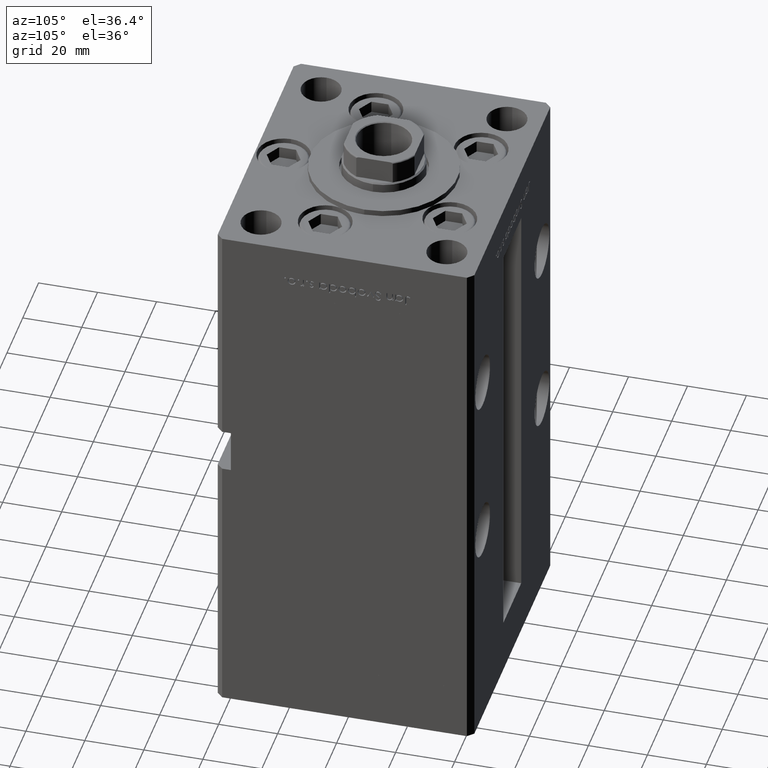
[diagram: clean part render]
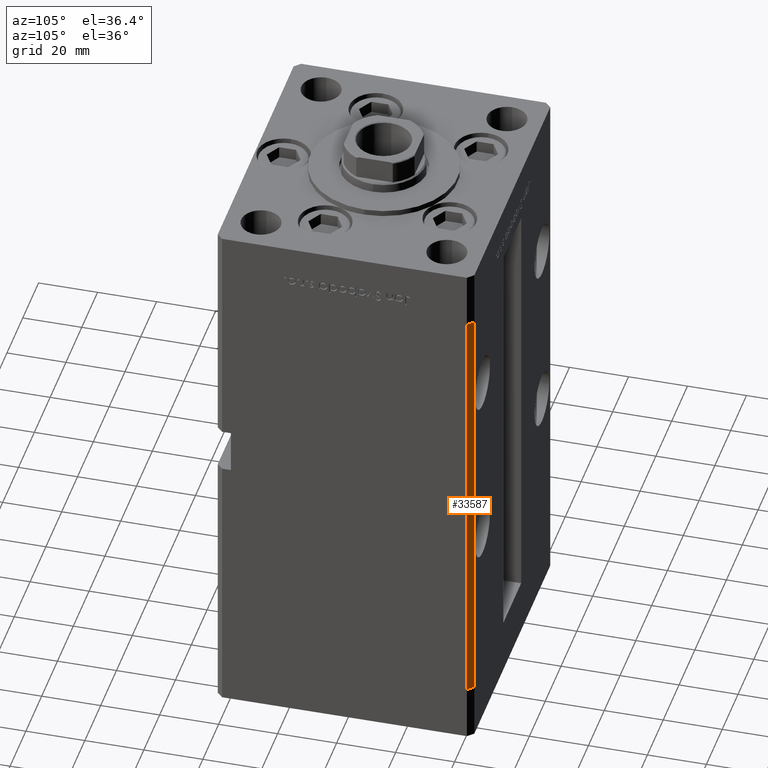
[diagram: same view with one face highlighted and labeled with its STEP entity id]
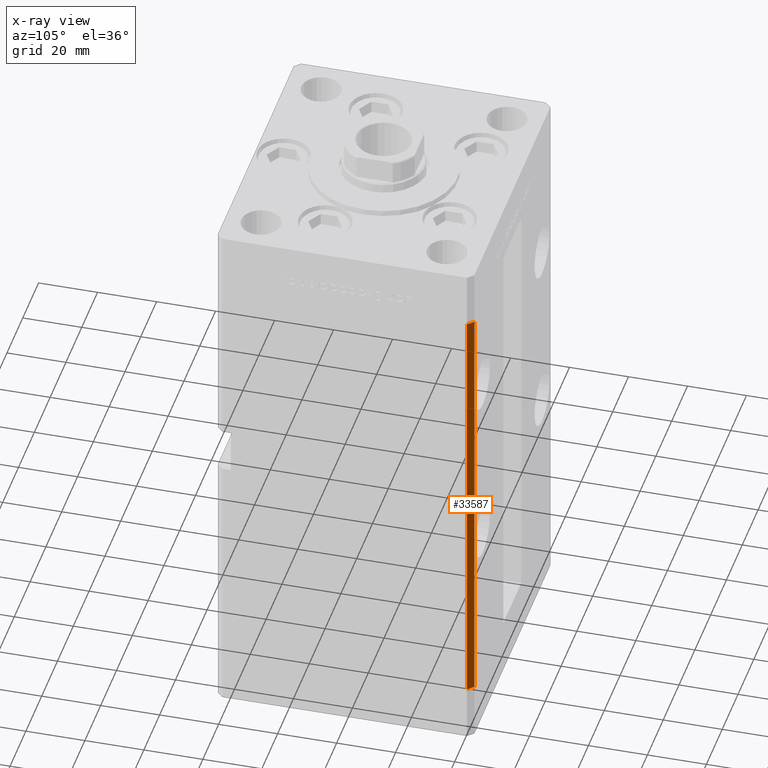
[diagram: x-ray of the same camera — body ghosted, the highlighted face saturated]
A machine part, auxiliary view. The second image highlights one B-rep face of the part: STEP entity #33587.
The next image is the same camera in x-ray: the body ghosted, the highlighted face saturated — about 0% of this face is hidden behind the body in this view.
In plain terms, the highlighted planar face has unit normal (0.7071, 0.7071, 0).
Its self-contained STEP definition (entity closure, byte-faithful):
#2955 = VERTEX_POINT ( 'NONE', #46788 ) ;
#4528 = CARTESIAN_POINT ( 'NONE',  ( 50.00000000000001421, 41.49999999999999289, 0.000000000000000000 ) ) ;
#5094 = DIRECTION ( 'NONE',  ( -0.7071067811865487940, 0.7071067811865463515, 0.000000000000000000 ) ) ;
#5513 = DIRECTION ( 'NONE',  ( 0.7071067811865487940, -0.7071067811865463515, 0.000000000000000000 ) ) ;
#6402 = EDGE_LOOP ( 'NONE', ( #12790, #35033, #36586, #15397 ) ) ;
#6873 = CARTESIAN_POINT ( 'NONE',  ( 48.00000000000000711, 43.50000000000000000, 0.000000000000000000 ) ) ;
#8606 = PLANE ( 'NONE',  #30174 ) ;
#9844 = DIRECTION ( 'NONE',  ( -0.000000000000000000, -0.000000000000000000, -1.000000000000000000 ) ) ;
#12790 = ORIENTED_EDGE ( 'NONE', *, *, #48698, .F. ) ;
#15397 = ORIENTED_EDGE ( 'NONE', *, *, #29687, .T. ) ;
#16755 = VECTOR ( 'NONE', #24606, 1000.000000000000000 ) ;
#17397 = LINE ( 'NONE', #34828, #38840 ) ;
#21605 = LINE ( 'NONE', #37726, #16755 ) ;
#22025 = CARTESIAN_POINT ( 'NONE',  ( 50.00000000000001421, 41.49999999999999289, 148.5000000000000000 ) ) ;
#22732 = CARTESIAN_POINT ( 'NONE',  ( 50.00000000000001421, 41.49999999999999289, 148.5000000000000000 ) ) ;
#24606 = DIRECTION ( 'NONE',  ( 0.7071067811865487940, -0.7071067811865463515, 0.000000000000000000 ) ) ;
#26958 = VECTOR ( 'NONE', #5513, 1000.000000000000000 ) ;
#27006 = CARTESIAN_POINT ( 'NONE',  ( 48.00000000000000711, 43.50000000000000000, 148.5000000000000000 ) ) ;
#28782 = CARTESIAN_POINT ( 'NONE',  ( 48.00000000000000711, 43.50000000000000000, 148.5000000000000000 ) ) ;
#29687 = EDGE_CURVE ( 'NONE', #33763, #52457, #47694, .T. ) ;
#30174 = AXIS2_PLACEMENT_3D ( 'NONE', #28782, #45130, #5094 ) ;
#30548 = DIRECTION ( 'NONE',  ( -0.000000000000000000, -0.000000000000000000, -1.000000000000000000 ) ) ;
#30613 = VERTEX_POINT ( 'NONE', #6873 ) ;
#33587 = ADVANCED_FACE ( 'NONE', ( #49708 ), #8606, .T. ) ;
#33763 = VERTEX_POINT ( 'NONE', #22025 ) ;
#34828 = CARTESIAN_POINT ( 'NONE',  ( 48.00000000000000711, 43.50000000000000000, 148.5000000000000000 ) ) ;
#35033 = ORIENTED_EDGE ( 'NONE', *, *, #37686, .F. ) ;
#36176 = VECTOR ( 'NONE', #30548, 1000.000000000000000 ) ;
#36586 = ORIENTED_EDGE ( 'NONE', *, *, #41796, .T. ) ;
#37686 = EDGE_CURVE ( 'NONE', #2955, #30613, #17397, .T. ) ;
#37726 = CARTESIAN_POINT ( 'NONE',  ( 48.00000000000000711, 43.50000000000000000, 0.000000000000000000 ) ) ;
#38840 = VECTOR ( 'NONE', #9844, 1000.000000000000000 ) ;
#41796 = EDGE_CURVE ( 'NONE', #2955, #33763, #51697, .T. ) ;
#45130 = DIRECTION ( 'NONE',  ( 0.7071067811865463515, 0.7071067811865487940, -0.000000000000000000 ) ) ;
#46788 = CARTESIAN_POINT ( 'NONE',  ( 48.00000000000000711, 43.50000000000000000, 148.5000000000000000 ) ) ;
#47694 = LINE ( 'NONE', #22732, #36176 ) ;
#48698 = EDGE_CURVE ( 'NONE', #30613, #52457, #21605, .T. ) ;
#49708 = FACE_OUTER_BOUND ( 'NONE', #6402, .T. ) ;
#51697 = LINE ( 'NONE', #27006, #26958 ) ;
#52457 = VERTEX_POINT ( 'NONE', #4528 ) ;